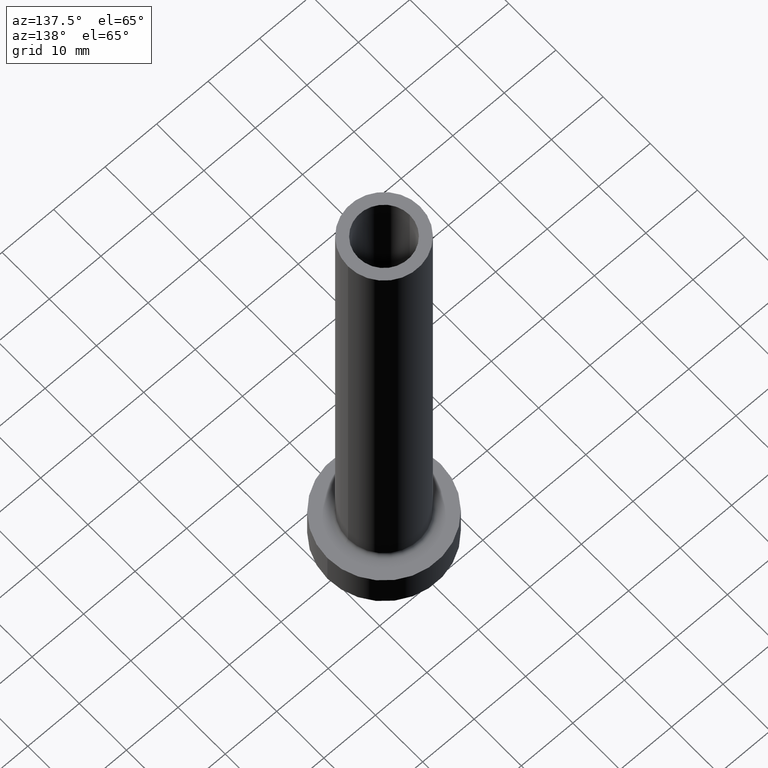
[diagram: clean part render]
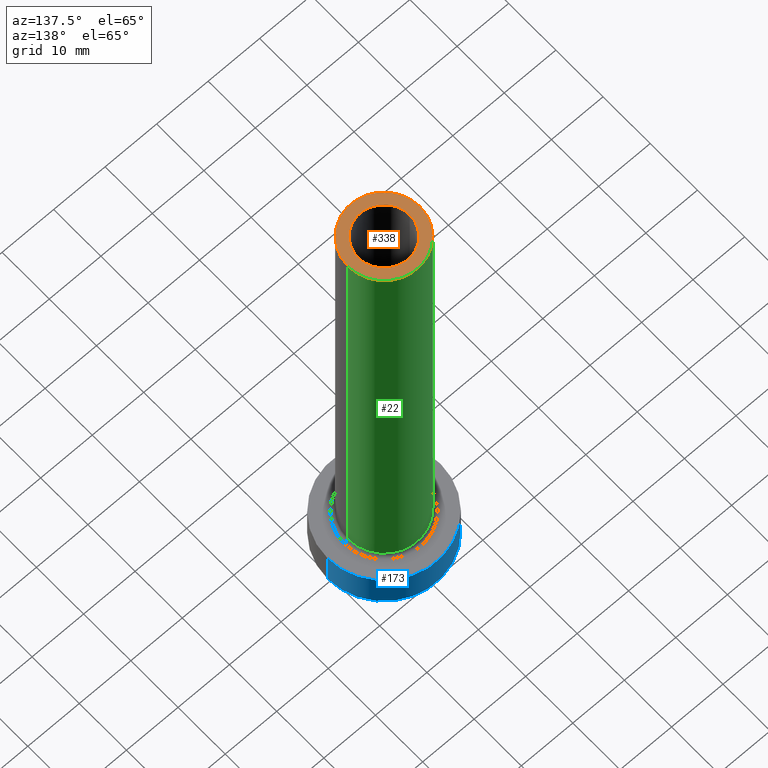
[diagram: same view with three faces highlighted in distinct colors, each labeled with its STEP entity id]
A machine part, auxiliary view with three faces highlighted in distinct colors.
Their STEP definitions:

[orange] entity #338 — the highlighted planar face has unit normal (0, 0, 1).
#17 = AXIS2_PLACEMENT_3D ( 'NONE', #405, #203, #129 ) ;
#27 = AXIS2_PLACEMENT_3D ( 'NONE', #91, #236, #455 ) ;
#84 = AXIS2_PLACEMENT_3D ( 'NONE', #409, #88, #232 ) ;
#88 = DIRECTION ( 'NONE',  ( 0.000000000000000000, 0.000000000000000000, 1.000000000000000000 ) ) ;
#91 = CARTESIAN_POINT ( 'NONE',  ( 0.000000000000000000, 0.000000000000000000, 100.0000000000000000 ) ) ;
#100 = AXIS2_PLACEMENT_3D ( 'NONE', #170, #278, #314 ) ;
#129 = DIRECTION ( 'NONE',  ( 1.000000000000000000, 0.000000000000000000, -0.000000000000000000 ) ) ;
#137 = DIRECTION ( 'NONE',  ( 0.000000000000000000, 0.000000000000000000, 1.000000000000000000 ) ) ;
#149 = CARTESIAN_POINT ( 'NONE',  ( 5.000000000000000000, 6.123233995736765296E-16, 100.0000000000000000 ) ) ;
#162 = CIRCLE ( 'NONE', #418, 7.000000000000000888 ) ;
#165 = CARTESIAN_POINT ( 'NONE',  ( 7.000000000000000888, 8.572527594031472204E-16, 100.0000000000000000 ) ) ;
#170 = CARTESIAN_POINT ( 'NONE',  ( 0.000000000000000000, 0.000000000000000000, 100.0000000000000000 ) ) ;
#181 = CIRCLE ( 'NONE', #84, 5.000000000000000000 ) ;
#183 = ORIENTED_EDGE ( 'NONE', *, *, #397, .T. ) ;
#190 = ORIENTED_EDGE ( 'NONE', *, *, #312, .F. ) ;
#203 = DIRECTION ( 'NONE',  ( 0.000000000000000000, 0.000000000000000000, 1.000000000000000000 ) ) ;
#232 = DIRECTION ( 'NONE',  ( 1.000000000000000000, 0.000000000000000000, 0.000000000000000000 ) ) ;
#236 = DIRECTION ( 'NONE',  ( 0.000000000000000000, 0.000000000000000000, 1.000000000000000000 ) ) ;
#239 = FACE_OUTER_BOUND ( 'NONE', #283, .T. ) ;
#256 = VERTEX_POINT ( 'NONE', #149 ) ;
#277 = FACE_BOUND ( 'NONE', #390, .T. ) ;
#278 = DIRECTION ( 'NONE',  ( 0.000000000000000000, 0.000000000000000000, 1.000000000000000000 ) ) ;
#283 = EDGE_LOOP ( 'NONE', ( #183, #392 ) ) ;
#287 = CARTESIAN_POINT ( 'NONE',  ( -7.000000000000000888, 0.000000000000000000, 100.0000000000000000 ) ) ;
#312 = EDGE_CURVE ( 'NONE', #420, #256, #447, .T. ) ;
#314 = DIRECTION ( 'NONE',  ( 1.000000000000000000, 0.000000000000000000, 0.000000000000000000 ) ) ;
#330 = EDGE_CURVE ( 'NONE', #371, #436, #162, .T. ) ;
#338 = ADVANCED_FACE ( 'NONE', ( #277, #239 ), #368, .T. ) ;
#358 = ORIENTED_EDGE ( 'NONE', *, *, #391, .F. ) ;
#368 = PLANE ( 'NONE',  #17 ) ;
#371 = VERTEX_POINT ( 'NONE', #165 ) ;
#390 = EDGE_LOOP ( 'NONE', ( #190, #358 ) ) ;
#391 = EDGE_CURVE ( 'NONE', #256, #420, #181, .T. ) ;
#392 = ORIENTED_EDGE ( 'NONE', *, *, #330, .T. ) ;
#397 = EDGE_CURVE ( 'NONE', #436, #371, #426, .T. ) ;
#405 = CARTESIAN_POINT ( 'NONE',  ( 0.000000000000000000, 0.000000000000000000, 100.0000000000000000 ) ) ;
#409 = CARTESIAN_POINT ( 'NONE',  ( 0.000000000000000000, 0.000000000000000000, 100.0000000000000000 ) ) ;
#415 = DIRECTION ( 'NONE',  ( 1.000000000000000000, 0.000000000000000000, 0.000000000000000000 ) ) ;
#418 = AXIS2_PLACEMENT_3D ( 'NONE', #451, #137, #415 ) ;
#420 = VERTEX_POINT ( 'NONE', #459 ) ;
#426 = CIRCLE ( 'NONE', #27, 7.000000000000000888 ) ;
#436 = VERTEX_POINT ( 'NONE', #287 ) ;
#447 = CIRCLE ( 'NONE', #100, 5.000000000000000000 ) ;
#451 = CARTESIAN_POINT ( 'NONE',  ( 0.000000000000000000, 0.000000000000000000, 100.0000000000000000 ) ) ;
#455 = DIRECTION ( 'NONE',  ( 1.000000000000000000, 0.000000000000000000, 0.000000000000000000 ) ) ;
#459 = CARTESIAN_POINT ( 'NONE',  ( -5.000000000000000000, 0.000000000000000000, 100.0000000000000000 ) ) ;

[blue] entity #173 — the highlighted cylindrical surface (partial cylindrical patch) has radius 11 mm, axis along (-0, -0, -1).
#4 = EDGE_CURVE ( 'NONE', #427, #450, #444, .T. ) ;
#31 = FACE_OUTER_BOUND ( 'NONE', #251, .T. ) ;
#38 = DIRECTION ( 'NONE',  ( -0.000000000000000000, -0.000000000000000000, -1.000000000000000000 ) ) ;
#59 = CARTESIAN_POINT ( 'NONE',  ( 11.00000000000000000, 1.347111479062088405E-15, 7.000000000000000000 ) ) ;
#67 = VERTEX_POINT ( 'NONE', #319 ) ;
#75 = CARTESIAN_POINT ( 'NONE',  ( 0.000000000000000000, 0.000000000000000000, 0.000000000000000000 ) ) ;
#79 = ORIENTED_EDGE ( 'NONE', *, *, #246, .T. ) ;
#102 = CYLINDRICAL_SURFACE ( 'NONE', #133, 11.00000000000000000 ) ;
#103 = DIRECTION ( 'NONE',  ( -0.000000000000000000, -0.000000000000000000, -1.000000000000000000 ) ) ;
#113 = AXIS2_PLACEMENT_3D ( 'NONE', #177, #254, #296 ) ;
#132 = DIRECTION ( 'NONE',  ( -0.000000000000000000, -0.000000000000000000, -1.000000000000000000 ) ) ;
#133 = AXIS2_PLACEMENT_3D ( 'NONE', #142, #38, #357 ) ;
#140 = DIRECTION ( 'NONE',  ( 1.000000000000000000, 0.000000000000000000, 0.000000000000000000 ) ) ;
#142 = CARTESIAN_POINT ( 'NONE',  ( 0.000000000000000000, 0.000000000000000000, 7.000000000000000000 ) ) ;
#173 = ADVANCED_FACE ( 'NONE', ( #31 ), #102, .T. ) ;
#177 = CARTESIAN_POINT ( 'NONE',  ( 0.000000000000000000, 0.000000000000000000, 7.000000000000000000 ) ) ;
#179 = AXIS2_PLACEMENT_3D ( 'NONE', #75, #453, #140 ) ;
#187 = ORIENTED_EDGE ( 'NONE', *, *, #413, .T. ) ;
#196 = EDGE_CURVE ( 'NONE', #305, #427, #402, .T. ) ;
#246 = EDGE_CURVE ( 'NONE', #67, #450, #274, .T. ) ;
#250 = CARTESIAN_POINT ( 'NONE',  ( -11.00000000000000000, 0.000000000000000000, 7.000000000000000000 ) ) ;
#251 = EDGE_LOOP ( 'NONE', ( #313, #187, #79, #461 ) ) ;
#254 = DIRECTION ( 'NONE',  ( 0.000000000000000000, 0.000000000000000000, 1.000000000000000000 ) ) ;
#274 = CIRCLE ( 'NONE', #179, 11.00000000000000000 ) ;
#284 = CARTESIAN_POINT ( 'NONE',  ( 11.00000000000000000, 1.347111479062088405E-15, 7.000000000000000000 ) ) ;
#296 = DIRECTION ( 'NONE',  ( 1.000000000000000000, 0.000000000000000000, 0.000000000000000000 ) ) ;
#305 = VERTEX_POINT ( 'NONE', #59 ) ;
#313 = ORIENTED_EDGE ( 'NONE', *, *, #196, .F. ) ;
#319 = CARTESIAN_POINT ( 'NONE',  ( 11.00000000000000000, 1.347111479062088405E-15, 0.000000000000000000 ) ) ;
#357 = DIRECTION ( 'NONE',  ( -1.000000000000000000, 0.000000000000000000, 0.000000000000000000 ) ) ;
#359 = VECTOR ( 'NONE', #132, 1000.000000000000000 ) ;
#386 = LINE ( 'NONE', #284, #433 ) ;
#402 = CIRCLE ( 'NONE', #113, 11.00000000000000000 ) ;
#413 = EDGE_CURVE ( 'NONE', #305, #67, #386, .T. ) ;
#419 = CARTESIAN_POINT ( 'NONE',  ( -11.00000000000000000, 0.000000000000000000, 0.000000000000000000 ) ) ;
#427 = VERTEX_POINT ( 'NONE', #250 ) ;
#433 = VECTOR ( 'NONE', #103, 1000.000000000000000 ) ;
#443 = CARTESIAN_POINT ( 'NONE',  ( -11.00000000000000000, 0.000000000000000000, 7.000000000000000000 ) ) ;
#444 = LINE ( 'NONE', #443, #359 ) ;
#450 = VERTEX_POINT ( 'NONE', #419 ) ;
#453 = DIRECTION ( 'NONE',  ( 0.000000000000000000, 0.000000000000000000, 1.000000000000000000 ) ) ;
#461 = ORIENTED_EDGE ( 'NONE', *, *, #4, .F. ) ;

[green] entity #22 — the highlighted cylindrical surface (partial cylindrical patch) has radius 7 mm, axis along (-0, -0, -1).
#7 = ORIENTED_EDGE ( 'NONE', *, *, #222, .F. ) ;
#22 = ADVANCED_FACE ( 'NONE', ( #205 ), #346, .T. ) ;
#25 = CARTESIAN_POINT ( 'NONE',  ( 7.000000000000000888, 8.572527594031472204E-16, 100.0000000000000000 ) ) ;
#39 = AXIS2_PLACEMENT_3D ( 'NONE', #204, #345, #94 ) ;
#42 = VERTEX_POINT ( 'NONE', #58 ) ;
#58 = CARTESIAN_POINT ( 'NONE',  ( -7.000000000000000888, 0.000000000000000000, 7.699999999999998401 ) ) ;
#66 = LINE ( 'NONE', #25, #295 ) ;
#94 = DIRECTION ( 'NONE',  ( 1.000000000000000000, 0.000000000000000000, 0.000000000000000000 ) ) ;
#123 = VECTOR ( 'NONE', #211, 1000.000000000000000 ) ;
#136 = CARTESIAN_POINT ( 'NONE',  ( 0.000000000000000000, 0.000000000000000000, 100.0000000000000000 ) ) ;
#137 = DIRECTION ( 'NONE',  ( 0.000000000000000000, 0.000000000000000000, 1.000000000000000000 ) ) ;
#138 = DIRECTION ( 'NONE',  ( -0.000000000000000000, -0.000000000000000000, -1.000000000000000000 ) ) ;
#144 = CARTESIAN_POINT ( 'NONE',  ( -7.000000000000000888, 0.000000000000000000, 100.0000000000000000 ) ) ;
#145 = ORIENTED_EDGE ( 'NONE', *, *, #445, .T. ) ;
#162 = CIRCLE ( 'NONE', #418, 7.000000000000000888 ) ;
#165 = CARTESIAN_POINT ( 'NONE',  ( 7.000000000000000888, 8.572527594031472204E-16, 100.0000000000000000 ) ) ;
#204 = CARTESIAN_POINT ( 'NONE',  ( 0.000000000000000000, 0.000000000000000000, 7.699999999999998401 ) ) ;
#205 = FACE_OUTER_BOUND ( 'NONE', #267, .T. ) ;
#211 = DIRECTION ( 'NONE',  ( -0.000000000000000000, -0.000000000000000000, -1.000000000000000000 ) ) ;
#212 = DIRECTION ( 'NONE',  ( -0.000000000000000000, -0.000000000000000000, -1.000000000000000000 ) ) ;
#222 = EDGE_CURVE ( 'NONE', #436, #42, #320, .T. ) ;
#238 = DIRECTION ( 'NONE',  ( -1.000000000000000000, 0.000000000000000000, 0.000000000000000000 ) ) ;
#267 = EDGE_LOOP ( 'NONE', ( #401, #145, #351, #7 ) ) ;
#287 = CARTESIAN_POINT ( 'NONE',  ( -7.000000000000000888, 0.000000000000000000, 100.0000000000000000 ) ) ;
#291 = EDGE_CURVE ( 'NONE', #460, #42, #379, .T. ) ;
#295 = VECTOR ( 'NONE', #212, 1000.000000000000000 ) ;
#320 = LINE ( 'NONE', #144, #123 ) ;
#329 = AXIS2_PLACEMENT_3D ( 'NONE', #136, #138, #238 ) ;
#330 = EDGE_CURVE ( 'NONE', #371, #436, #162, .T. ) ;
#345 = DIRECTION ( 'NONE',  ( 0.000000000000000000, 0.000000000000000000, 1.000000000000000000 ) ) ;
#346 = CYLINDRICAL_SURFACE ( 'NONE', #329, 7.000000000000000888 ) ;
#351 = ORIENTED_EDGE ( 'NONE', *, *, #291, .T. ) ;
#371 = VERTEX_POINT ( 'NONE', #165 ) ;
#379 = CIRCLE ( 'NONE', #39, 7.000000000000000888 ) ;
#401 = ORIENTED_EDGE ( 'NONE', *, *, #330, .F. ) ;
#415 = DIRECTION ( 'NONE',  ( 1.000000000000000000, 0.000000000000000000, 0.000000000000000000 ) ) ;
#418 = AXIS2_PLACEMENT_3D ( 'NONE', #451, #137, #415 ) ;
#421 = CARTESIAN_POINT ( 'NONE',  ( 7.000000000000000888, 8.572527594031472204E-16, 7.699999999999998401 ) ) ;
#436 = VERTEX_POINT ( 'NONE', #287 ) ;
#445 = EDGE_CURVE ( 'NONE', #371, #460, #66, .T. ) ;
#451 = CARTESIAN_POINT ( 'NONE',  ( 0.000000000000000000, 0.000000000000000000, 100.0000000000000000 ) ) ;
#460 = VERTEX_POINT ( 'NONE', #421 ) ;